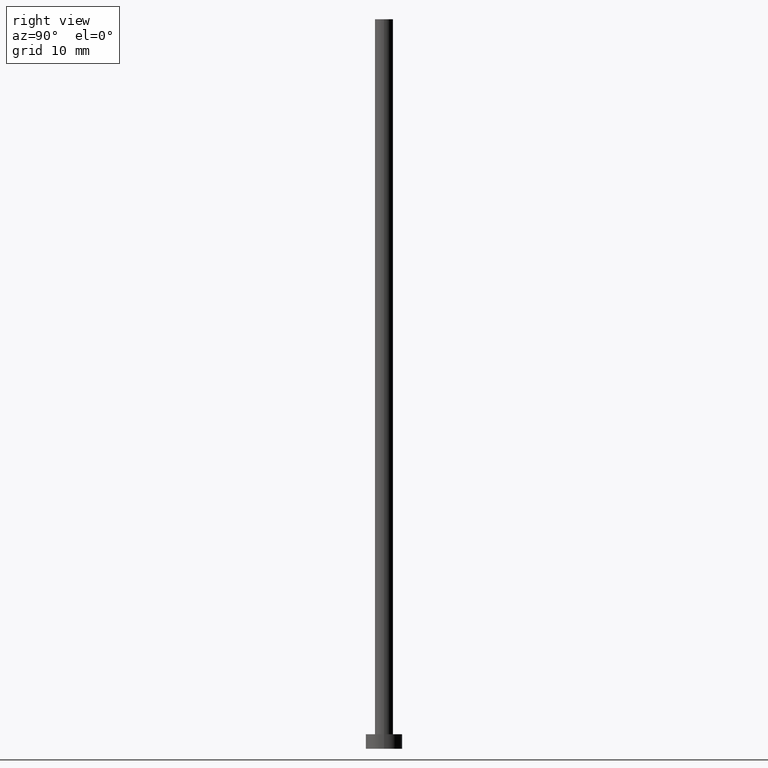
[diagram: clean part render]
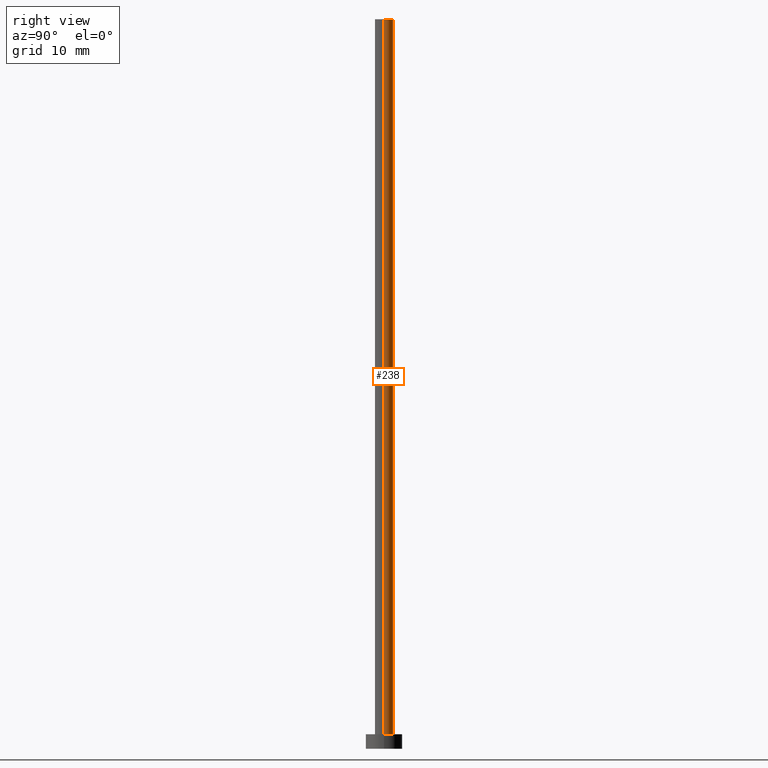
[diagram: same view with one face highlighted and labeled with its STEP entity id]
A machine part, right view. The second image highlights one B-rep face of the part: STEP entity #238.
In plain terms, the highlighted cylindrical surface (edge-blend (fillet) strip) has radius 1.25 mm, axis along (-0, -0, -1).
Its self-contained STEP definition (entity closure, byte-faithful):
#13 = VERTEX_POINT ( 'NONE', #80 ) ;
#21 = VERTEX_POINT ( 'NONE', #40 ) ;
#32 = AXIS2_PLACEMENT_3D ( 'NONE', #60, #123, #199 ) ;
#38 = ORIENTED_EDGE ( 'NONE', *, *, #114, .F. ) ;
#40 = CARTESIAN_POINT ( 'NONE',  ( 1.250000000000000000, 1.530808498934191571E-16, 100.0000000000000000 ) ) ;
#41 = CARTESIAN_POINT ( 'NONE',  ( -1.250000000000000000, 0.000000000000000000, 100.0000000000000000 ) ) ;
#55 = EDGE_CURVE ( 'NONE', #21, #13, #93, .T. ) ;
#56 = CARTESIAN_POINT ( 'NONE',  ( 1.250000000000000000, 1.530808498934191571E-16, 100.0000000000000000 ) ) ;
#60 = CARTESIAN_POINT ( 'NONE',  ( 0.000000000000000000, 0.000000000000000000, 100.0000000000000000 ) ) ;
#80 = CARTESIAN_POINT ( 'NONE',  ( 1.250000000000000000, 1.530808498934191571E-16, 2.000000000000000000 ) ) ;
#81 = CYLINDRICAL_SURFACE ( 'NONE', #32, 1.250000000000000000 ) ;
#82 = AXIS2_PLACEMENT_3D ( 'NONE', #164, #241, #202 ) ;
#88 = EDGE_LOOP ( 'NONE', ( #38, #155, #183, #182 ) ) ;
#93 = LINE ( 'NONE', #56, #156 ) ;
#101 = DIRECTION ( 'NONE',  ( 0.000000000000000000, 0.000000000000000000, 1.000000000000000000 ) ) ;
#103 = CARTESIAN_POINT ( 'NONE',  ( -1.250000000000000000, 0.000000000000000000, 100.0000000000000000 ) ) ;
#114 = EDGE_CURVE ( 'NONE', #21, #166, #229, .T. ) ;
#123 = DIRECTION ( 'NONE',  ( -0.000000000000000000, -0.000000000000000000, -1.000000000000000000 ) ) ;
#145 = DIRECTION ( 'NONE',  ( 1.000000000000000000, 0.000000000000000000, 0.000000000000000000 ) ) ;
#149 = CARTESIAN_POINT ( 'NONE',  ( -1.250000000000000000, 0.000000000000000000, 2.000000000000000000 ) ) ;
#155 = ORIENTED_EDGE ( 'NONE', *, *, #55, .T. ) ;
#156 = VECTOR ( 'NONE', #215, 1000.000000000000000 ) ;
#161 = CARTESIAN_POINT ( 'NONE',  ( 0.000000000000000000, 0.000000000000000000, 100.0000000000000000 ) ) ;
#164 = CARTESIAN_POINT ( 'NONE',  ( 0.000000000000000000, 0.000000000000000000, 2.000000000000000000 ) ) ;
#166 = VERTEX_POINT ( 'NONE', #41 ) ;
#182 = ORIENTED_EDGE ( 'NONE', *, *, #198, .F. ) ;
#183 = ORIENTED_EDGE ( 'NONE', *, *, #190, .T. ) ;
#190 = EDGE_CURVE ( 'NONE', #13, #223, #255, .T. ) ;
#198 = EDGE_CURVE ( 'NONE', #166, #223, #247, .T. ) ;
#199 = DIRECTION ( 'NONE',  ( -1.000000000000000000, 0.000000000000000000, 0.000000000000000000 ) ) ;
#202 = DIRECTION ( 'NONE',  ( 1.000000000000000000, 0.000000000000000000, 0.000000000000000000 ) ) ;
#215 = DIRECTION ( 'NONE',  ( -0.000000000000000000, -0.000000000000000000, -1.000000000000000000 ) ) ;
#218 = DIRECTION ( 'NONE',  ( -0.000000000000000000, -0.000000000000000000, -1.000000000000000000 ) ) ;
#223 = VERTEX_POINT ( 'NONE', #149 ) ;
#229 = CIRCLE ( 'NONE', #250, 1.250000000000000000 ) ;
#238 = ADVANCED_FACE ( 'NONE', ( #240 ), #81, .T. ) ;
#240 = FACE_OUTER_BOUND ( 'NONE', #88, .T. ) ;
#241 = DIRECTION ( 'NONE',  ( 0.000000000000000000, 0.000000000000000000, 1.000000000000000000 ) ) ;
#247 = LINE ( 'NONE', #103, #252 ) ;
#250 = AXIS2_PLACEMENT_3D ( 'NONE', #161, #101, #145 ) ;
#252 = VECTOR ( 'NONE', #218, 1000.000000000000000 ) ;
#255 = CIRCLE ( 'NONE', #82, 1.250000000000000000 ) ;